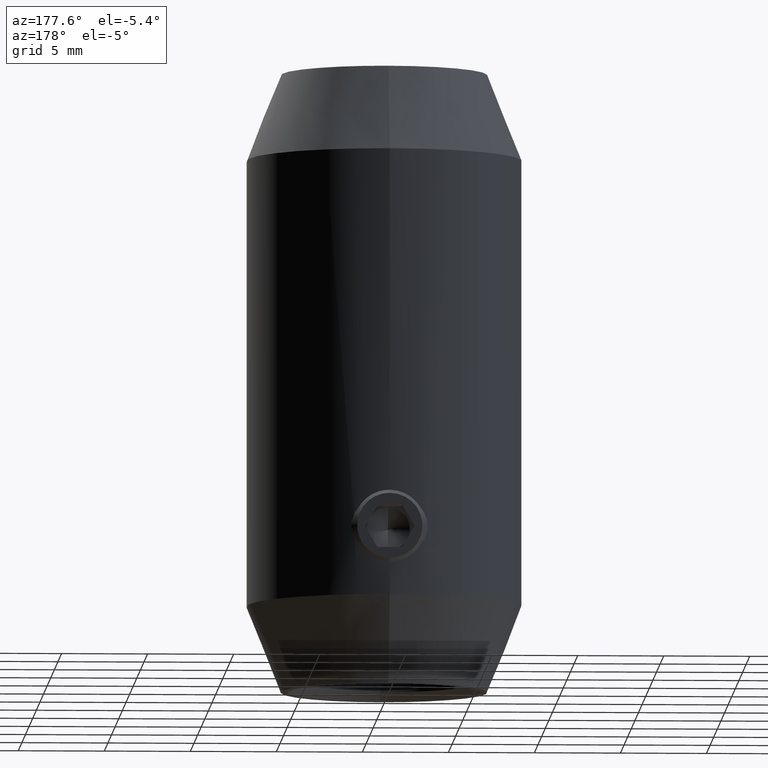
[diagram: clean part render]
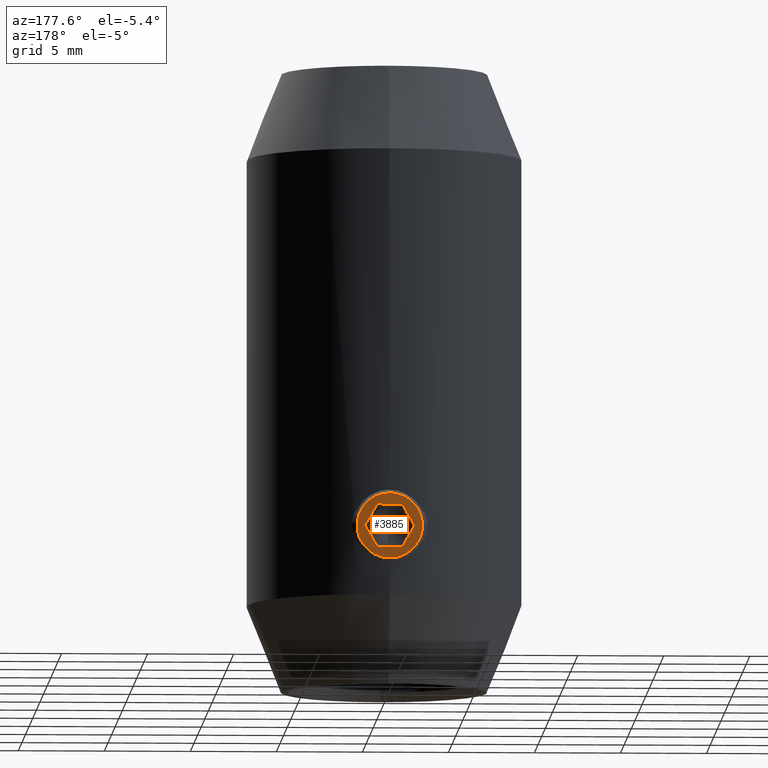
[diagram: same view with one face highlighted and labeled with its STEP entity id]
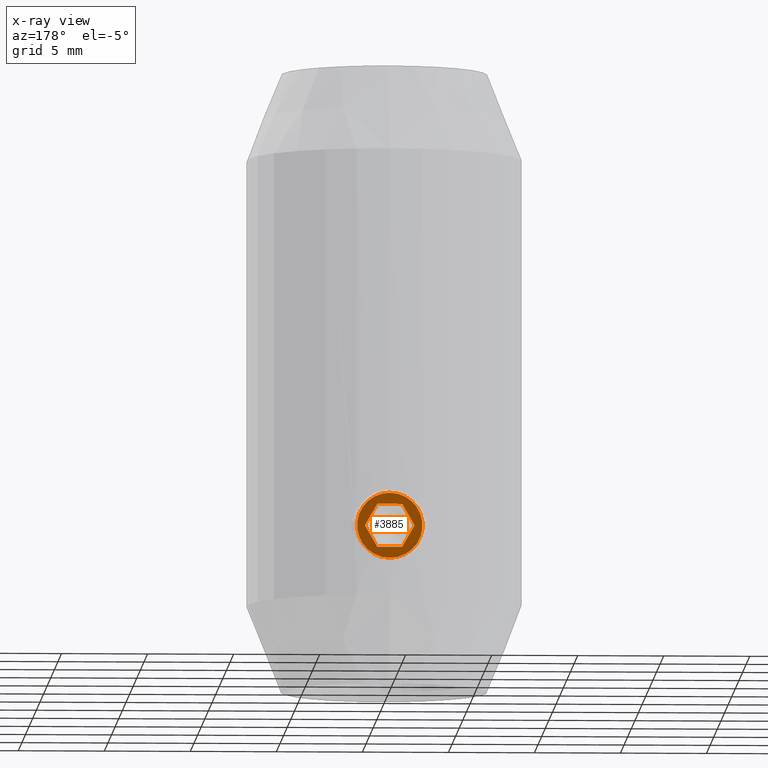
[diagram: x-ray of the same camera — body ghosted, the highlighted face saturated]
A machine part, auxiliary view. The second image highlights one B-rep face of the part: STEP entity #3885.
The next image is the same camera in x-ray: the body ghosted, the highlighted face saturated — about 0% of this face is hidden behind the body in this view.
In plain terms, the highlighted planar face has unit normal (0, 1, 0).
Its self-contained STEP definition (entity closure, byte-faithful):
#59 = CARTESIAN_POINT ( 'NONE',  ( 3.000000000000000000, 0.7216878364870329410, 1.250000000000000222 ) ) ;
#91 = EDGE_CURVE ( 'NONE', #2366, #13236, #3485, .T. ) ;
#97 = DIRECTION ( 'NONE',  ( 0.000000000000000000, -1.000000000000000000, 0.000000000000000000 ) ) ;
#236 = VECTOR ( 'NONE', #97, 1000.000000000000000 ) ;
#527 = LINE ( 'NONE', #6107, #5886 ) ;
#659 = ORIENTED_EDGE ( 'NONE', *, *, #13897, .F. ) ;
#852 = DIRECTION ( 'NONE',  ( 0.000000000000000000, 0.000000000000000000, -1.000000000000000000 ) ) ;
#1143 = VECTOR ( 'NONE', #2521, 1000.000000000000000 ) ;
#1183 = VERTEX_POINT ( 'NONE', #11368 ) ;
#1667 = AXIS2_PLACEMENT_3D ( 'NONE', #2126, #10831, #10749 ) ;
#1779 = CARTESIAN_POINT ( 'NONE',  ( 3.000000000000000000, 0.7216878364870332740, -1.249999999999999556 ) ) ;
#2126 = CARTESIAN_POINT ( 'NONE',  ( 3.000000000000000000, 0.000000000000000000, 0.000000000000000000 ) ) ;
#2366 = VERTEX_POINT ( 'NONE', #4698 ) ;
#2473 = EDGE_CURVE ( 'NONE', #12893, #1183, #8951, .T. ) ;
#2521 = DIRECTION ( 'NONE',  ( 0.000000000000000000, -0.4999999999999997224, 0.8660254037844388186 ) ) ;
#2762 = CARTESIAN_POINT ( 'NONE',  ( 3.000000000000000000, 0.7216878364870329410, 1.250000000000000222 ) ) ;
#2793 = EDGE_LOOP ( 'NONE', ( #6804, #7014 ) ) ;
#3126 = EDGE_LOOP ( 'NONE', ( #4972, #11221, #4356, #659, #5461, #8690 ) ) ;
#3485 = LINE ( 'NONE', #11435, #1143 ) ;
#3838 = CARTESIAN_POINT ( 'NONE',  ( 3.000000000000000000, 2.694222958124177006E-16, -1.900000000000000133 ) ) ;
#3885 = ADVANCED_FACE ( 'NONE', ( #10595, #9095 ), #11640, .T. ) ;
#3940 = DIRECTION ( 'NONE',  ( 0.000000000000000000, -0.5000000000000001110, -0.8660254037844384856 ) ) ;
#3953 = CARTESIAN_POINT ( 'NONE',  ( 3.000000000000000000, -1.443375672974064772, 3.980513353642522317E-18 ) ) ;
#4253 = VECTOR ( 'NONE', #3940, 1000.000000000000227 ) ;
#4356 = ORIENTED_EDGE ( 'NONE', *, *, #91, .F. ) ;
#4698 = CARTESIAN_POINT ( 'NONE',  ( 3.000000000000000000, 1.443375672974064994, -4.595694183076123237E-16 ) ) ;
#4972 = ORIENTED_EDGE ( 'NONE', *, *, #2473, .F. ) ;
#5228 = AXIS2_PLACEMENT_3D ( 'NONE', #7321, #10554, #6198 ) ;
#5391 = VECTOR ( 'NONE', #12638, 1000.000000000000000 ) ;
#5416 = CARTESIAN_POINT ( 'NONE',  ( 3.000000000000000000, -0.7216878364870332740, -1.249999999999999556 ) ) ;
#5461 = ORIENTED_EDGE ( 'NONE', *, *, #12389, .F. ) ;
#5886 = VECTOR ( 'NONE', #9199, 1000.000000000000000 ) ;
#6107 = CARTESIAN_POINT ( 'NONE',  ( 3.000000000000000000, -0.7216878364870332740, -1.249999999999999556 ) ) ;
#6140 = VERTEX_POINT ( 'NONE', #8301 ) ;
#6198 = DIRECTION ( 'NONE',  ( 0.000000000000000000, 0.000000000000000000, -1.000000000000000000 ) ) ;
#6362 = CIRCLE ( 'NONE', #5228, 1.900000000000000133 ) ;
#6723 = CARTESIAN_POINT ( 'NONE',  ( 3.000000000000000000, 0.7216878364870332740, -1.249999999999999556 ) ) ;
#6804 = ORIENTED_EDGE ( 'NONE', *, *, #7941, .T. ) ;
#7014 = ORIENTED_EDGE ( 'NONE', *, *, #13559, .T. ) ;
#7321 = CARTESIAN_POINT ( 'NONE',  ( 3.000000000000000000, 0.000000000000000000, 0.000000000000000000 ) ) ;
#7941 = EDGE_CURVE ( 'NONE', #6140, #11839, #11533, .T. ) ;
#8301 = CARTESIAN_POINT ( 'NONE',  ( 3.000000000000000000, 0.000000000000000000, 1.900000000000000133 ) ) ;
#8318 = EDGE_CURVE ( 'NONE', #13236, #12893, #10793, .T. ) ;
#8690 = ORIENTED_EDGE ( 'NONE', *, *, #10863, .F. ) ;
#8951 = LINE ( 'NONE', #10346, #4253 ) ;
#9095 = FACE_OUTER_BOUND ( 'NONE', #2793, .T. ) ;
#9199 = DIRECTION ( 'NONE',  ( 0.000000000000000000, 1.000000000000000000, 0.000000000000000000 ) ) ;
#9579 = LINE ( 'NONE', #3953, #5391 ) ;
#10177 = VERTEX_POINT ( 'NONE', #1779 ) ;
#10220 = CARTESIAN_POINT ( 'NONE',  ( 3.000000000000000000, -0.7216878364870320528, 1.250000000000000222 ) ) ;
#10346 = CARTESIAN_POINT ( 'NONE',  ( 3.000000000000000000, -0.7216878364870320528, 1.250000000000000222 ) ) ;
#10551 = LINE ( 'NONE', #6723, #12396 ) ;
#10554 = DIRECTION ( 'NONE',  ( 1.000000000000000000, 0.000000000000000000, 0.000000000000000000 ) ) ;
#10595 = FACE_BOUND ( 'NONE', #3126, .T. ) ;
#10623 = DIRECTION ( 'NONE',  ( 1.000000000000000000, 0.000000000000000000, 0.000000000000000000 ) ) ;
#10749 = DIRECTION ( 'NONE',  ( 0.000000000000000000, 0.000000000000000000, -1.000000000000000000 ) ) ;
#10793 = LINE ( 'NONE', #59, #236 ) ;
#10831 = DIRECTION ( 'NONE',  ( 1.000000000000000000, 0.000000000000000000, 0.000000000000000000 ) ) ;
#10863 = EDGE_CURVE ( 'NONE', #1183, #13743, #9579, .T. ) ;
#11221 = ORIENTED_EDGE ( 'NONE', *, *, #8318, .F. ) ;
#11368 = CARTESIAN_POINT ( 'NONE',  ( 3.000000000000000000, -1.443375672974064772, 1.084202172485504434E-16 ) ) ;
#11435 = CARTESIAN_POINT ( 'NONE',  ( 3.000000000000000000, 1.443375672974064994, -4.595694183076123237E-16 ) ) ;
#11533 = CIRCLE ( 'NONE', #1667, 1.900000000000000133 ) ;
#11640 = PLANE ( 'NONE',  #11809 ) ;
#11809 = AXIS2_PLACEMENT_3D ( 'NONE', #12620, #10623, #852 ) ;
#11839 = VERTEX_POINT ( 'NONE', #3838 ) ;
#12389 = EDGE_CURVE ( 'NONE', #13743, #10177, #527, .T. ) ;
#12396 = VECTOR ( 'NONE', #13120, 1000.000000000000227 ) ;
#12620 = CARTESIAN_POINT ( 'NONE',  ( 3.000000000000000000, 0.000000000000000000, 0.000000000000000000 ) ) ;
#12638 = DIRECTION ( 'NONE',  ( 0.000000000000000000, 0.4999999999999997224, -0.8660254037844388186 ) ) ;
#12893 = VERTEX_POINT ( 'NONE', #10220 ) ;
#13120 = DIRECTION ( 'NONE',  ( 0.000000000000000000, 0.4999999999999998890, 0.8660254037844385966 ) ) ;
#13236 = VERTEX_POINT ( 'NONE', #2762 ) ;
#13559 = EDGE_CURVE ( 'NONE', #11839, #6140, #6362, .T. ) ;
#13743 = VERTEX_POINT ( 'NONE', #5416 ) ;
#13897 = EDGE_CURVE ( 'NONE', #10177, #2366, #10551, .T. ) ;